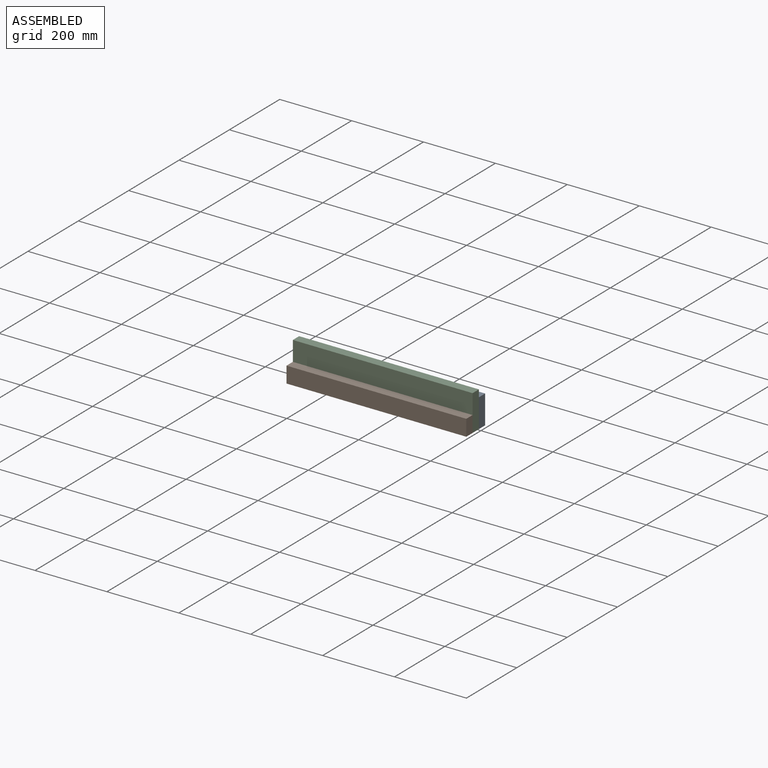
[diagram: assembled view]
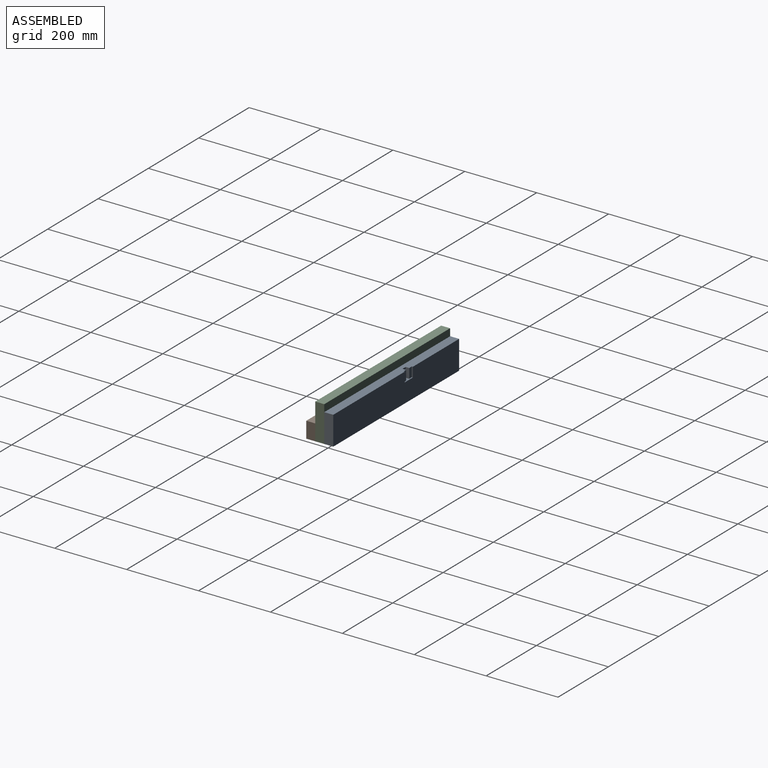
[diagram: assembled view, second angle]
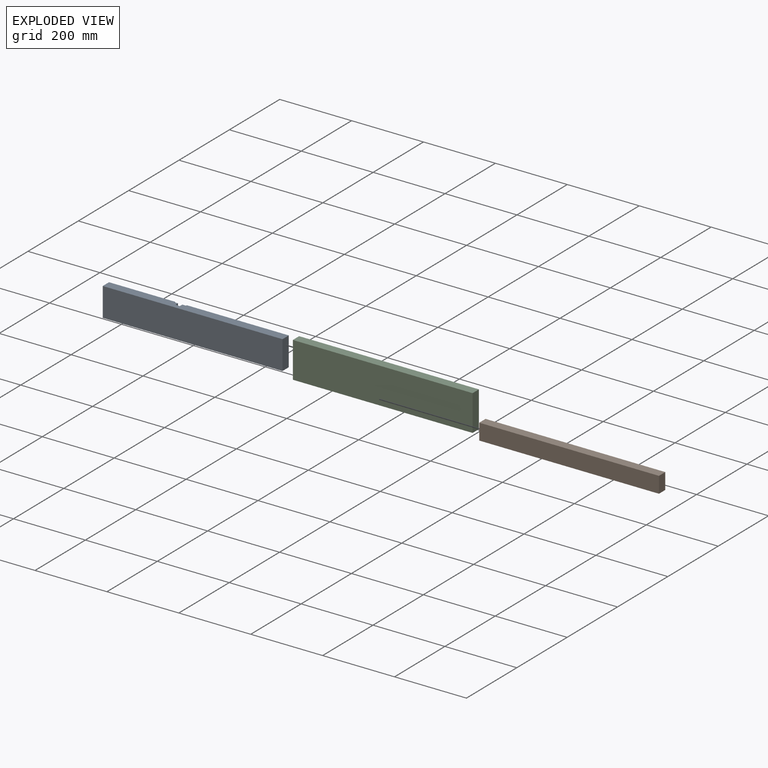
[diagram: exploded view]
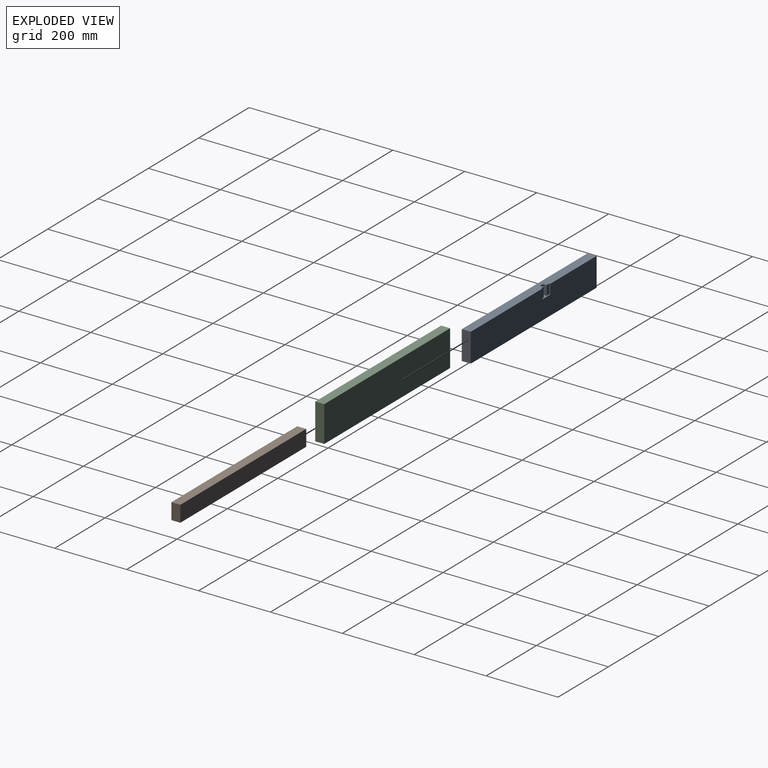
[diagram: exploded view, second angle]
ASSEMBLY  parts=3 mates=2
PART A: 14 faces, bbox 500x25x80 mm
  f0: plane 500x80mm, normal (0,-1,0), area 40000mm2, adj f1,f3,f4,f5
  f1: plane 500x25mm, normal (0,0,-1), area 12500mm2, adj f0,f2,f4,f5
  f2: plane 500x80mm, normal (0,1,0), area 39136mm2, adj f1,f3,f4,f5,f6,f12,f13
  f3: plane 500x25mm, normal (0,0,1), area 12284mm2, adj f0,f2,f4,f5,f6,f7,f8,f9
  f4: plane 80x25mm, normal (1,0,0), area 2000mm2, adj f0,f1,f2,f3
  f5: plane 80x25mm, normal (-1,0,0), area 2000mm2, adj f0,f1,f2,f3
  f6: plane 27x3mm, normal (1,0,0), area 81mm2, adj f2,f3,f7,f13
  f7: plane 27x10mm, normal (0,1,0), area 270mm2, adj f3,f6,f8,f13
  f8: plane 27x10mm, normal (1,0,0), area 270mm2, adj f3,f7,f9,f13
  f9: plane 27x12mm, normal (0,1,0), area 324mm2, adj f3,f8,f10,f13
  f10: plane 27x10mm, normal (-1,0,0), area 270mm2, adj f3,f9,f11,f13
  f11: plane 27x10mm, normal (0,1,0), area 270mm2, adj f3,f10,f12,f13
  f12: plane 27x3mm, normal (-1,0,0), area 81mm2, adj f2,f3,f11,f13
  f13: plane 32x13mm, normal (0,0,1), area 216mm2, adj f2,f6,f7,f8,f9,f10,f11,f12
PART B: 6 faces, bbox 500x25x45 mm
  f0: plane 500x45mm, normal (0,-1,0), area 22500mm2, adj f1,f3,f4,f5
  f1: plane 500x25mm, normal (0,0,-1), area 12500mm2, adj f0,f2,f4,f5
  f2: plane 500x45mm, normal (0,1,0), area 22500mm2, adj f1,f3,f4,f5
  f3: plane 500x25mm, normal (0,0,1), area 12500mm2, adj f0,f2,f4,f5
  f4: plane 45x25mm, normal (1,0,0), area 1125mm2, adj f0,f1,f2,f3
  f5: plane 45x25mm, normal (-1,0,0), area 1125mm2, adj f0,f1,f2,f3
PART C: 6 faces, bbox 500x25x100 mm
  f0: plane 500x100mm, normal (0,-1,0), area 50000mm2, adj f1,f3,f4,f5
  f1: plane 500x25mm, normal (0,0,-1), area 12500mm2, adj f0,f2,f4,f5
  f2: plane 500x100mm, normal (0,1,0), area 50000mm2, adj f1,f3,f4,f5
  f3: plane 500x25mm, normal (0,0,1), area 12500mm2, adj f0,f2,f4,f5
  f4: plane 100x25mm, normal (1,0,0), area 2500mm2, adj f0,f1,f2,f3
  f5: plane 100x25mm, normal (-1,0,0), area 2500mm2, adj f0,f1,f2,f3
PLACE A t=(-98.89,2.89,-126.53)mm
PLACE B t=(-98.89,-47.11,-144.03)mm
PLACE C t=(-98.89,-22.11,-116.53)mm
MATE fastened C.f4 <-> B.f4  axis (1,0,0) through (401.11,-34.61,-166.53)mm
MATE fastened C.f4 <-> A.f4  axis (1,0,0) through (401.11,-9.61,-166.53)mm
